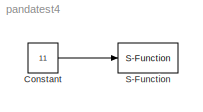
MODEL pandatest4
KIND model
BLOCK [Constant] Constant
  OutDataTypeStr = uint32
  SID = 1
  Value = 11
BLOCK [S-Function] S-Function
  EnableBusSupport = off
  FunctionName = printOut
  Ports = [1]
  SID = 2
LINE Constant:1 -> S-Function:1
